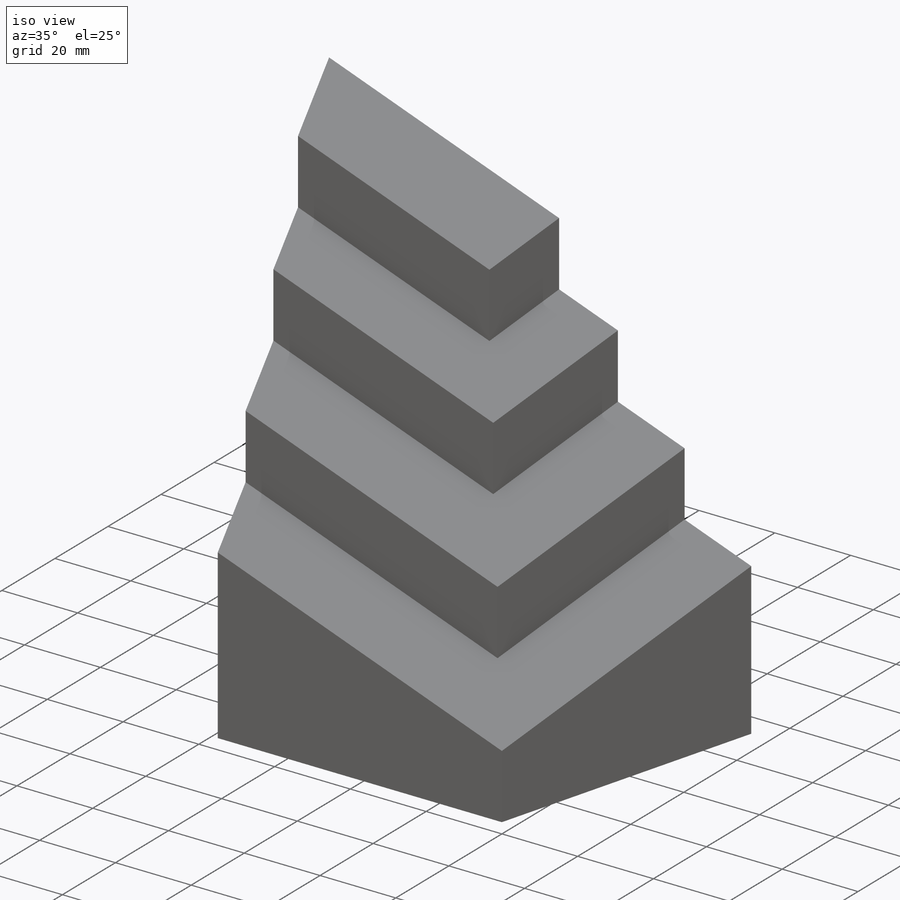
[diagram: iso view]
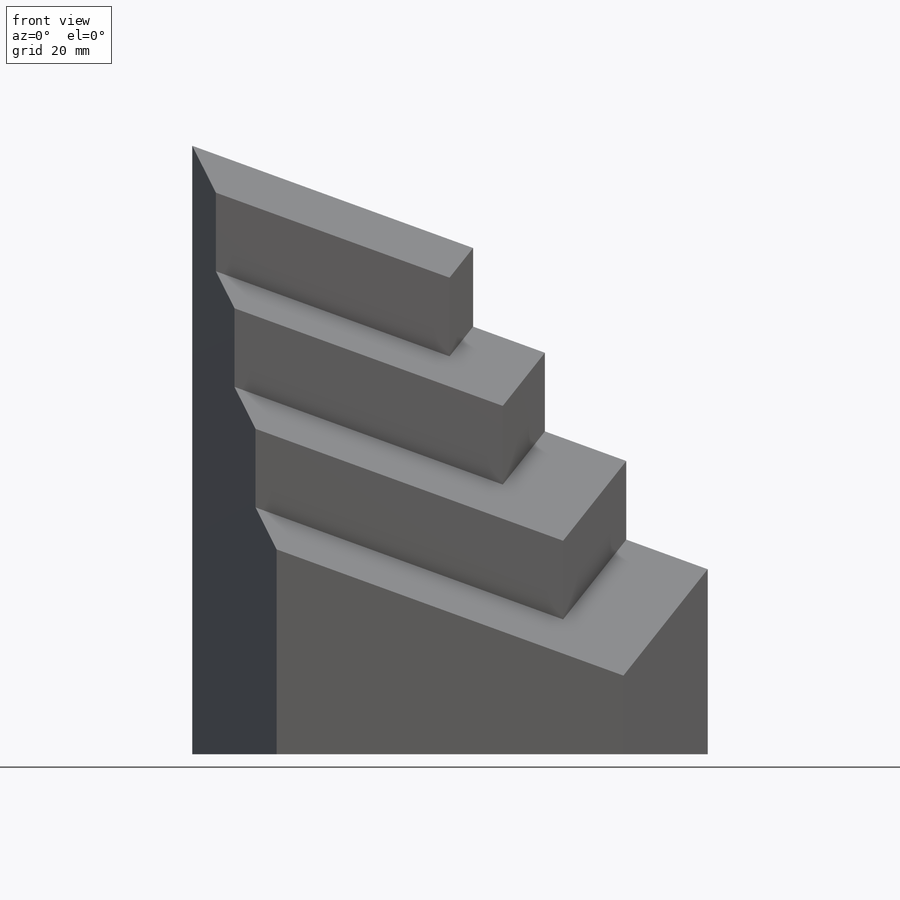
[diagram: front view]
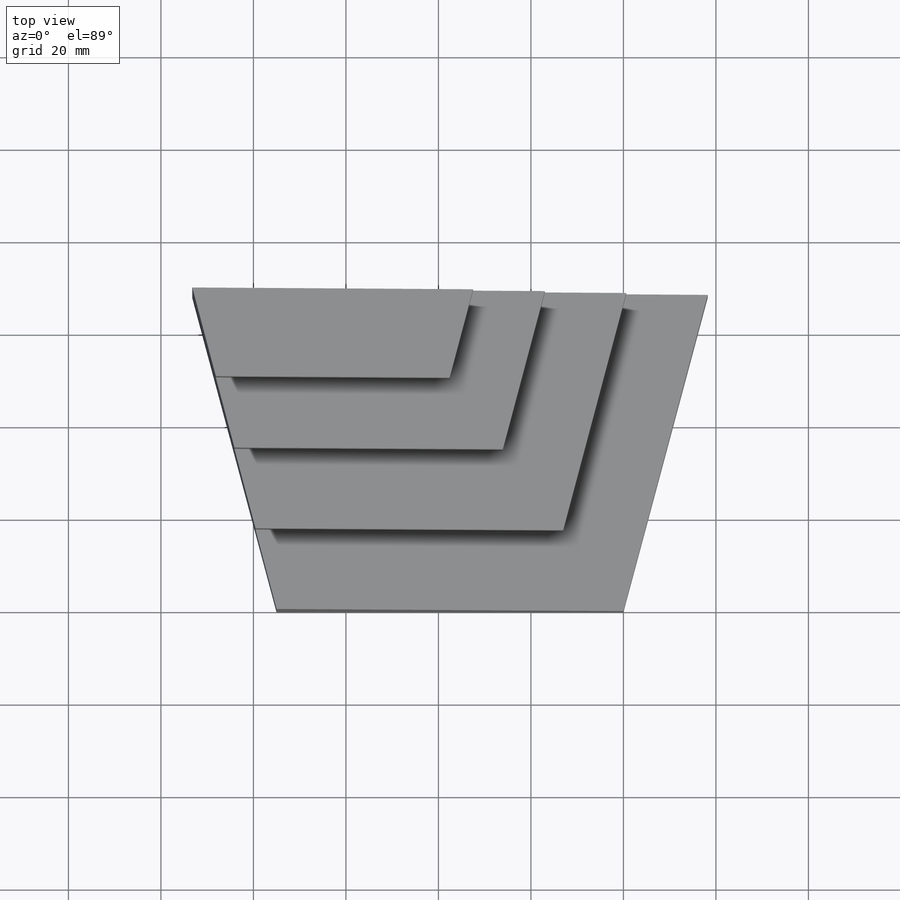
[diagram: top view]
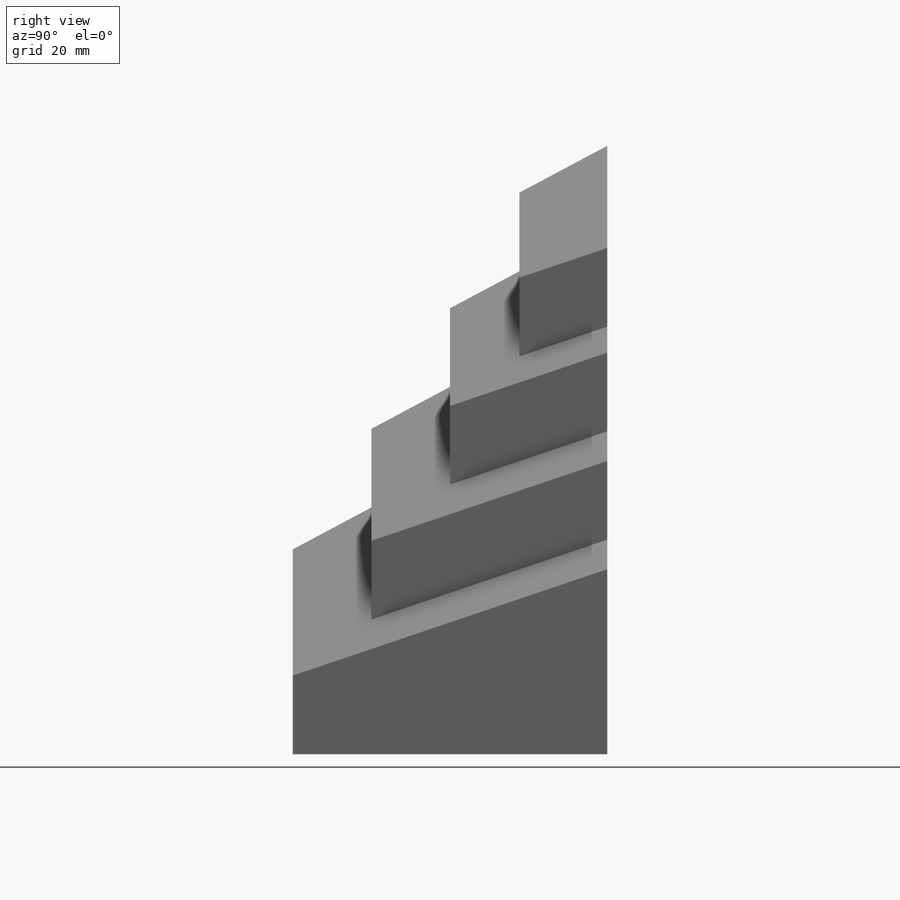
[diagram: right view]
SOLIDWORKS PART (.sldprt)
format: sldprt  version: not decoded by parser v0  size: 376,832 bytes
history: native  units: mm
features: sketch x16, cut_extrude x8, extrude x4, plane x4, material x1 (+14 scaffold rows collapsed)
feature tree (47):
  scaffold x14  (default folders/planes/origin — collapsed)
  material  "Material <not specified>"
  sketch  "Sketch1"  dims[c1.D1=~38.418611mm c2.D1=75.0deg c2.D2=~41.849376mm c3.D2=75.0deg c3.D3=75.0mm c3.D4=68.0mm]
  extrude  "Extrude1"  Depth=90mm
  sketch  "Sketch2"  dims[c1.D1=40.0mm c1.D2=~111.44109mm c2.D2=20.0deg]
  cut_extrude  "Cut-Extrude1"  [1 undecoded]
  sketch  "Sketch3"  dims[D1=17.0mm]
  plane  "Plane1"
  sketch  "Sketch4"
  cut_extrude  "Cut-Extrude2"  Depth=30mm
  sketch  "Sketch5"  dims[D1=17.0mm D2=17.0mm]
  extrude  "Extrude2"  Depth=100mm
  sketch  "Sketch6"  dims[D1=17.0mm D2=~10.999453mm]
  cut_extrude  "Cut-Extrude3"  [1 undecoded]
  sketch  "Sketch7"  dims[D1=17.0mm]
  plane  "Plane2"
  sketch  "Sketch8"
  cut_extrude  "Cut-Extrude4"  Depth=20mm
  sketch  "Sketch9"  dims[D1=17.0mm D2=17.0mm]
  extrude  "Extrude3"  Depth=120mm
  sketch  "Sketch10"  dims[D1=34.0mm]
  cut_extrude  "Cut-Extrude5"  [1 undecoded]
  sketch  "Sketch11"  dims[D1=17.0mm]
  plane  "Plane3"
  sketch  "Sketch12"
  cut_extrude  "Cut-Extrude6"  Depth=20mm
  sketch  "Sketch13"  dims[D1=15.0mm D2=15.0mm]
  extrude  "Extrude4"  Depth=140mm
  sketch  "Sketch14"  dims[D1=51.0mm]
  cut_extrude  "Cut-Extrude7"  [1 undecoded]
  sketch  "Sketch15"  dims[D1=17.0mm]
  plane  "Plane4"
  sketch  "Sketch16"
  cut_extrude  "Cut-Extrude8"  Depth=10mm
decode coverage: 20 of 28 modeling features carry decoded parameters
note: ~ marks probable driven/reference dimensions
note: 4 parameter values undecoded
summary: no parameter record found for 4 features
note: suppression state not decoded; provenance and decode notes live in map.json
